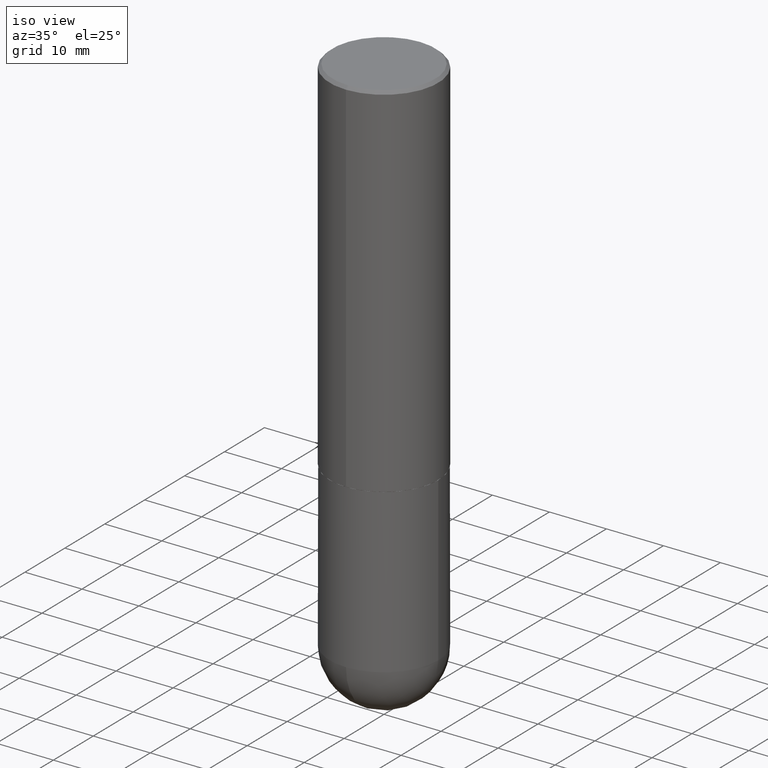
[diagram: clean part render]
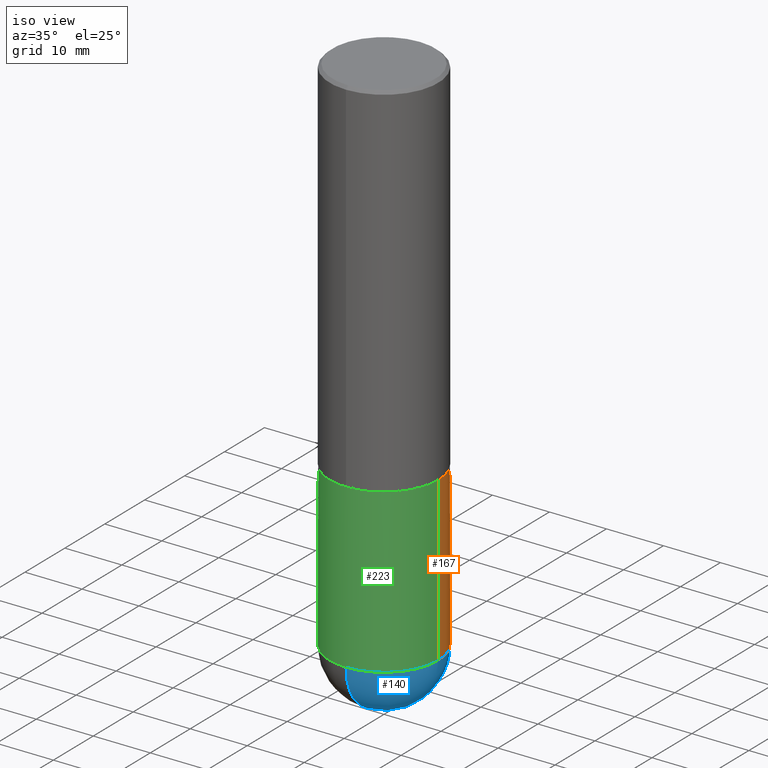
[diagram: same view with three faces highlighted in distinct colors, each labeled with its STEP entity id]
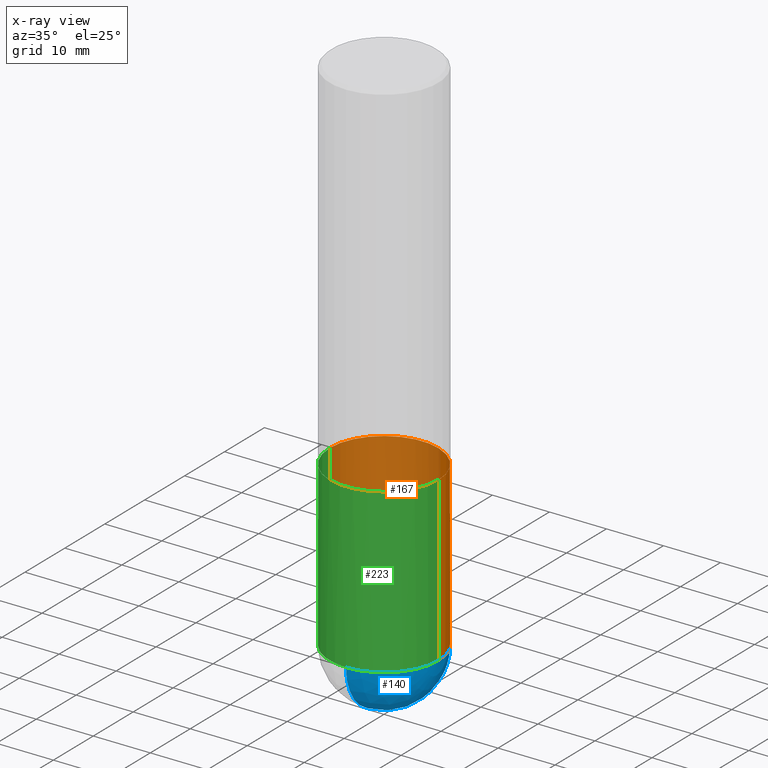
[diagram: x-ray of the same camera — body ghosted, the three highlighted faces saturated]
A machine part, iso view with three faces highlighted in distinct colors.
The next image is the same camera in x-ray (body ghosted, the three faces saturated) — at least one of them is partly hidden behind the body in this view.
Their STEP definitions:

[orange] entity #167 — the highlighted cylindrical surface (partial cylindrical patch) has radius 9.525 mm, axis along (-0, 0, 1).
#9 = LINE ( 'NONE', #128, #226 ) ;
#17 = AXIS2_PLACEMENT_3D ( 'NONE', #172, #281, #31 ) ;
#29 = CARTESIAN_POINT ( 'NONE',  ( 2.618611004132438763E-15, 0.3749999999999873990, -3.625000000000000888 ) ) ;
#31 = DIRECTION ( 'NONE',  ( 1.000000000000000000, -6.982962677686265922E-15, 0.000000000000000000 ) ) ;
#35 = CARTESIAN_POINT ( 'NONE',  ( 0.3750000000000000555, -1.134731435124021338E-14, -2.500000000000000000 ) ) ;
#37 = CARTESIAN_POINT ( 'NONE',  ( 6.113672015462842613E-29, -8.728703347107864943E-15, -2.500000000000000000 ) ) ;
#39 = AXIS2_PLACEMENT_3D ( 'NONE', #312, #59, #350 ) ;
#53 = ORIENTED_EDGE ( 'NONE', *, *, #191, .F. ) ;
#59 = DIRECTION ( 'NONE',  ( -2.445468806185136597E-29, 3.491481338843145583E-15, 1.000000000000000000 ) ) ;
#90 = DIRECTION ( 'NONE',  ( -2.445468806185136877E-29, 3.491481338843145188E-15, 1.000000000000000000 ) ) ;
#93 = CARTESIAN_POINT ( 'NONE',  ( -0.3750000000000001110, 2.664535259100376486E-15, -1.844600658845590159E-29 ) ) ;
#109 = ORIENTED_EDGE ( 'NONE', *, *, #356, .T. ) ;
#118 = DIRECTION ( 'NONE',  ( 1.000000000000000000, -6.982962677686264344E-15, 0.000000000000000000 ) ) ;
#123 = EDGE_CURVE ( 'NONE', #301, #228, #160, .T. ) ;
#124 = AXIS2_PLACEMENT_3D ( 'NONE', #355, #152, #412 ) ;
#128 = CARTESIAN_POINT ( 'NONE',  ( 0.3750000000000001110, -2.618611004132350411E-15, 1.828566290923476483E-29 ) ) ;
#146 = VERTEX_POINT ( 'NONE', #35 ) ;
#149 = EDGE_CURVE ( 'NONE', #387, #146, #9, .T. ) ;
#152 = DIRECTION ( 'NONE',  ( -2.445468806185136597E-29, 3.491481338843145583E-15, 1.000000000000000000 ) ) ;
#153 = CARTESIAN_POINT ( 'NONE',  ( 0.3750000000000001110, -1.331127260433948773E-14, -3.624999999999999556 ) ) ;
#160 = LINE ( 'NONE', #93, #402 ) ;
#163 = CARTESIAN_POINT ( 'NONE',  ( -0.3750000000000000555, -8.028126341106755702E-15, -2.500000000000000000 ) ) ;
#165 = AXIS2_PLACEMENT_3D ( 'NONE', #37, #249, #118 ) ;
#167 = ADVANCED_FACE ( 'NONE', ( #221 ), #220, .T. ) ;
#172 = CARTESIAN_POINT ( 'NONE',  ( 8.864824422421120163E-29, -1.265661985330640259E-14, -3.624999999999999556 ) ) ;
#177 = CARTESIAN_POINT ( 'NONE',  ( -0.3750000000000001110, -8.028126341106758858E-15, -3.624999999999999556 ) ) ;
#190 = DIRECTION ( 'NONE',  ( -2.445468806185136877E-29, 3.491481338843145188E-15, 1.000000000000000000 ) ) ;
#191 = EDGE_CURVE ( 'NONE', #146, #228, #227, .T. ) ;
#220 = CYLINDRICAL_SURFACE ( 'NONE', #124, 0.3750000000000001110 ) ;
#221 = FACE_OUTER_BOUND ( 'NONE', #273, .T. ) ;
#226 = VECTOR ( 'NONE', #190, 39.37007874015748143 ) ;
#227 = CIRCLE ( 'NONE', #165, 0.3750000000000000555 ) ;
#228 = VERTEX_POINT ( 'NONE', #163 ) ;
#249 = DIRECTION ( 'NONE',  ( -2.445468806185136597E-29, 3.491481338843145583E-15, 1.000000000000000000 ) ) ;
#256 = ORIENTED_EDGE ( 'NONE', *, *, #321, .T. ) ;
#273 = EDGE_LOOP ( 'NONE', ( #109, #360, #53, #403, #256 ) ) ;
#281 = DIRECTION ( 'NONE',  ( -2.445468806185136597E-29, 3.491481338843145583E-15, 1.000000000000000000 ) ) ;
#301 = VERTEX_POINT ( 'NONE', #177 ) ;
#307 = VERTEX_POINT ( 'NONE', #29 ) ;
#312 = CARTESIAN_POINT ( 'NONE',  ( 8.864824422421120163E-29, -1.265661985330640259E-14, -3.624999999999999556 ) ) ;
#321 = EDGE_CURVE ( 'NONE', #387, #307, #344, .T. ) ;
#330 = CIRCLE ( 'NONE', #17, 0.3750000000000001110 ) ;
#344 = CIRCLE ( 'NONE', #39, 0.3750000000000001110 ) ;
#350 = DIRECTION ( 'NONE',  ( 1.000000000000000000, -6.982962677686265922E-15, 0.000000000000000000 ) ) ;
#355 = CARTESIAN_POINT ( 'NONE',  ( 0.000000000000000000, 0.000000000000000000, 0.000000000000000000 ) ) ;
#356 = EDGE_CURVE ( 'NONE', #307, #301, #330, .T. ) ;
#360 = ORIENTED_EDGE ( 'NONE', *, *, #123, .T. ) ;
#387 = VERTEX_POINT ( 'NONE', #153 ) ;
#402 = VECTOR ( 'NONE', #90, 39.37007874015748143 ) ;
#403 = ORIENTED_EDGE ( 'NONE', *, *, #149, .F. ) ;
#412 = DIRECTION ( 'NONE',  ( 1.000000000000000000, -6.982962677686265922E-15, 4.876176775795935793E-29 ) ) ;

[blue] entity #140 — the highlighted spherical surface has radius 9.525 mm.
#27 = EDGE_CURVE ( 'NONE', #111, #194, #61, .T. ) ;
#29 = CARTESIAN_POINT ( 'NONE',  ( 2.618611004132438763E-15, 0.3749999999999873990, -3.625000000000000888 ) ) ;
#30 = SPHERICAL_SURFACE ( 'NONE', #106, 0.3750000000000003886 ) ;
#39 = AXIS2_PLACEMENT_3D ( 'NONE', #312, #59, #350 ) ;
#51 = ORIENTED_EDGE ( 'NONE', *, *, #321, .F. ) ;
#59 = DIRECTION ( 'NONE',  ( -2.445468806185136597E-29, 3.491481338843145583E-15, 1.000000000000000000 ) ) ;
#60 = CARTESIAN_POINT ( 'NONE',  ( -2.664535259100290106E-15, -0.3750000000000131006, -3.624999999999998668 ) ) ;
#61 = CIRCLE ( 'NONE', #198, 0.3750000000000003886 ) ;
#64 = CARTESIAN_POINT ( 'NONE',  ( 9.466789814748773816E-29, -1.441714559602862136E-14, -4.000000000000000000 ) ) ;
#65 = DIRECTION ( 'NONE',  ( 6.982962677686265922E-15, 1.000000000000000000, 0.000000000000000000 ) ) ;
#71 = ORIENTED_EDGE ( 'NONE', *, *, #333, .F. ) ;
#83 = DIRECTION ( 'NONE',  ( -7.105427357600999492E-15, -1.000000000000000000, 0.000000000000000000 ) ) ;
#86 = AXIS2_PLACEMENT_3D ( 'NONE', #342, #303, #334 ) ;
#91 = AXIS2_PLACEMENT_3D ( 'NONE', #92, #382, #65 ) ;
#92 = CARTESIAN_POINT ( 'NONE',  ( 8.533704644507233916E-29, -1.313080222144645289E-14, -3.624999999999999556 ) ) ;
#106 = AXIS2_PLACEMENT_3D ( 'NONE', #289, #320, #120 ) ;
#111 = VERTEX_POINT ( 'NONE', #64 ) ;
#120 = DIRECTION ( 'NONE',  ( 6.982962677686266711E-15, 1.000000000000000000, -2.913971193241878005E-15 ) ) ;
#140 = ADVANCED_FACE ( 'NONE', ( #357 ), #30, .T. ) ;
#153 = CARTESIAN_POINT ( 'NONE',  ( 0.3750000000000001110, -1.331127260433948773E-14, -3.624999999999999556 ) ) ;
#161 = EDGE_CURVE ( 'NONE', #111, #307, #218, .T. ) ;
#194 = VERTEX_POINT ( 'NONE', #60 ) ;
#196 = EDGE_LOOP ( 'NONE', ( #310, #371, #51, #71 ) ) ;
#198 = AXIS2_PLACEMENT_3D ( 'NONE', #214, #374, #83 ) ;
#214 = CARTESIAN_POINT ( 'NONE',  ( 8.533704644507233916E-29, -1.313080222144645289E-14, -3.624999999999999556 ) ) ;
#218 = CIRCLE ( 'NONE', #91, 0.3750000000000003886 ) ;
#289 = CARTESIAN_POINT ( 'NONE',  ( 8.533704644507233916E-29, -1.313080222144645289E-14, -3.624999999999999556 ) ) ;
#298 = CIRCLE ( 'NONE', #86, 0.3750000000000001110 ) ;
#303 = DIRECTION ( 'NONE',  ( -2.445468806185136597E-29, 3.491481338843145583E-15, 1.000000000000000000 ) ) ;
#307 = VERTEX_POINT ( 'NONE', #29 ) ;
#310 = ORIENTED_EDGE ( 'NONE', *, *, #27, .F. ) ;
#312 = CARTESIAN_POINT ( 'NONE',  ( 8.864824422421120163E-29, -1.265661985330640259E-14, -3.624999999999999556 ) ) ;
#320 = DIRECTION ( 'NONE',  ( -1.000000000000000000, 6.982962677686266711E-15, -4.883557194083113462E-29 ) ) ;
#321 = EDGE_CURVE ( 'NONE', #387, #307, #344, .T. ) ;
#333 = EDGE_CURVE ( 'NONE', #194, #387, #298, .T. ) ;
#334 = DIRECTION ( 'NONE',  ( 1.000000000000000000, -6.982962677686265922E-15, 0.000000000000000000 ) ) ;
#342 = CARTESIAN_POINT ( 'NONE',  ( 8.864824422421120163E-29, -1.265661985330640259E-14, -3.624999999999999556 ) ) ;
#344 = CIRCLE ( 'NONE', #39, 0.3750000000000001110 ) ;
#350 = DIRECTION ( 'NONE',  ( 1.000000000000000000, -6.982962677686265922E-15, 0.000000000000000000 ) ) ;
#357 = FACE_OUTER_BOUND ( 'NONE', #196, .T. ) ;
#371 = ORIENTED_EDGE ( 'NONE', *, *, #161, .T. ) ;
#374 = DIRECTION ( 'NONE',  ( -1.000000000000000000, 7.105427357601001070E-15, -4.926315508542082329E-29 ) ) ;
#382 = DIRECTION ( 'NONE',  ( 1.000000000000000000, -6.982962677686265922E-15, 4.883557194083112340E-29 ) ) ;
#387 = VERTEX_POINT ( 'NONE', #153 ) ;

[green] entity #223 — the highlighted cylindrical surface (partial cylindrical patch) has radius 9.525 mm, axis along (-0, 0, 1).
#2 = EDGE_CURVE ( 'NONE', #301, #194, #386, .T. ) ;
#9 = LINE ( 'NONE', #128, #226 ) ;
#10 = CARTESIAN_POINT ( 'NONE',  ( 6.113672015462842613E-29, -8.728703347107864943E-15, -2.500000000000000000 ) ) ;
#11 = CYLINDRICAL_SURFACE ( 'NONE', #352, 0.3750000000000001110 ) ;
#13 = AXIS2_PLACEMENT_3D ( 'NONE', #245, #341, #19 ) ;
#19 = DIRECTION ( 'NONE',  ( 1.000000000000000000, -6.982962677686265922E-15, 0.000000000000000000 ) ) ;
#35 = CARTESIAN_POINT ( 'NONE',  ( 0.3750000000000000555, -1.134731435124021338E-14, -2.500000000000000000 ) ) ;
#40 = CARTESIAN_POINT ( 'NONE',  ( 0.000000000000000000, 0.000000000000000000, 0.000000000000000000 ) ) ;
#41 = DIRECTION ( 'NONE',  ( 1.000000000000000000, -6.982962677686264344E-15, 0.000000000000000000 ) ) ;
#42 = EDGE_LOOP ( 'NONE', ( #78, #80, #182, #280, #337 ) ) ;
#60 = CARTESIAN_POINT ( 'NONE',  ( -2.664535259100290106E-15, -0.3750000000000131006, -3.624999999999998668 ) ) ;
#78 = ORIENTED_EDGE ( 'NONE', *, *, #123, .F. ) ;
#80 = ORIENTED_EDGE ( 'NONE', *, *, #2, .T. ) ;
#86 = AXIS2_PLACEMENT_3D ( 'NONE', #342, #303, #334 ) ;
#90 = DIRECTION ( 'NONE',  ( -2.445468806185136877E-29, 3.491481338843145188E-15, 1.000000000000000000 ) ) ;
#93 = CARTESIAN_POINT ( 'NONE',  ( -0.3750000000000001110, 2.664535259100376486E-15, -1.844600658845590159E-29 ) ) ;
#123 = EDGE_CURVE ( 'NONE', #301, #228, #160, .T. ) ;
#128 = CARTESIAN_POINT ( 'NONE',  ( 0.3750000000000001110, -2.618611004132350411E-15, 1.828566290923476483E-29 ) ) ;
#146 = VERTEX_POINT ( 'NONE', #35 ) ;
#149 = EDGE_CURVE ( 'NONE', #387, #146, #9, .T. ) ;
#153 = CARTESIAN_POINT ( 'NONE',  ( 0.3750000000000001110, -1.331127260433948773E-14, -3.624999999999999556 ) ) ;
#157 = DIRECTION ( 'NONE',  ( -2.445468806185136597E-29, 3.491481338843145583E-15, 1.000000000000000000 ) ) ;
#160 = LINE ( 'NONE', #93, #402 ) ;
#162 = DIRECTION ( 'NONE',  ( -2.445468806185136597E-29, 3.491481338843145583E-15, 1.000000000000000000 ) ) ;
#163 = CARTESIAN_POINT ( 'NONE',  ( -0.3750000000000000555, -8.028126341106755702E-15, -2.500000000000000000 ) ) ;
#177 = CARTESIAN_POINT ( 'NONE',  ( -0.3750000000000001110, -8.028126341106758858E-15, -3.624999999999999556 ) ) ;
#182 = ORIENTED_EDGE ( 'NONE', *, *, #333, .T. ) ;
#190 = DIRECTION ( 'NONE',  ( -2.445468806185136877E-29, 3.491481338843145188E-15, 1.000000000000000000 ) ) ;
#194 = VERTEX_POINT ( 'NONE', #60 ) ;
#223 = ADVANCED_FACE ( 'NONE', ( #291 ), #11, .T. ) ;
#226 = VECTOR ( 'NONE', #190, 39.37007874015748143 ) ;
#228 = VERTEX_POINT ( 'NONE', #163 ) ;
#231 = CIRCLE ( 'NONE', #272, 0.3750000000000000555 ) ;
#243 = EDGE_CURVE ( 'NONE', #228, #146, #231, .T. ) ;
#245 = CARTESIAN_POINT ( 'NONE',  ( 8.864824422421120163E-29, -1.265661985330640259E-14, -3.624999999999999556 ) ) ;
#272 = AXIS2_PLACEMENT_3D ( 'NONE', #10, #157, #41 ) ;
#280 = ORIENTED_EDGE ( 'NONE', *, *, #149, .T. ) ;
#291 = FACE_OUTER_BOUND ( 'NONE', #42, .T. ) ;
#298 = CIRCLE ( 'NONE', #86, 0.3750000000000001110 ) ;
#301 = VERTEX_POINT ( 'NONE', #177 ) ;
#303 = DIRECTION ( 'NONE',  ( -2.445468806185136597E-29, 3.491481338843145583E-15, 1.000000000000000000 ) ) ;
#324 = DIRECTION ( 'NONE',  ( 1.000000000000000000, -6.982962677686265922E-15, 4.876176775795935793E-29 ) ) ;
#333 = EDGE_CURVE ( 'NONE', #194, #387, #298, .T. ) ;
#334 = DIRECTION ( 'NONE',  ( 1.000000000000000000, -6.982962677686265922E-15, 0.000000000000000000 ) ) ;
#337 = ORIENTED_EDGE ( 'NONE', *, *, #243, .F. ) ;
#341 = DIRECTION ( 'NONE',  ( -2.445468806185136597E-29, 3.491481338843145583E-15, 1.000000000000000000 ) ) ;
#342 = CARTESIAN_POINT ( 'NONE',  ( 8.864824422421120163E-29, -1.265661985330640259E-14, -3.624999999999999556 ) ) ;
#352 = AXIS2_PLACEMENT_3D ( 'NONE', #40, #162, #324 ) ;
#386 = CIRCLE ( 'NONE', #13, 0.3750000000000001110 ) ;
#387 = VERTEX_POINT ( 'NONE', #153 ) ;
#402 = VECTOR ( 'NONE', #90, 39.37007874015748143 ) ;